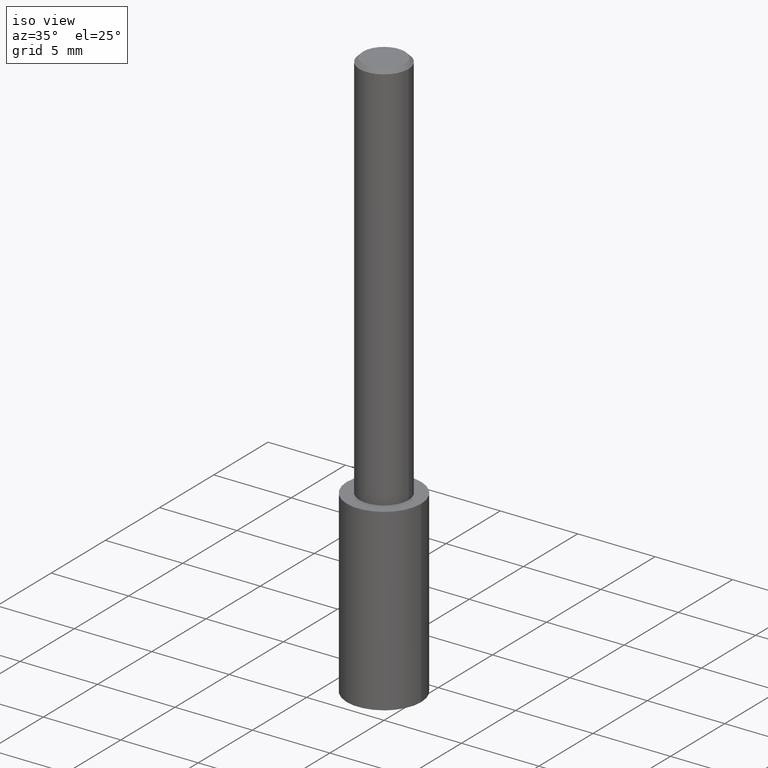
[diagram: clean part render]
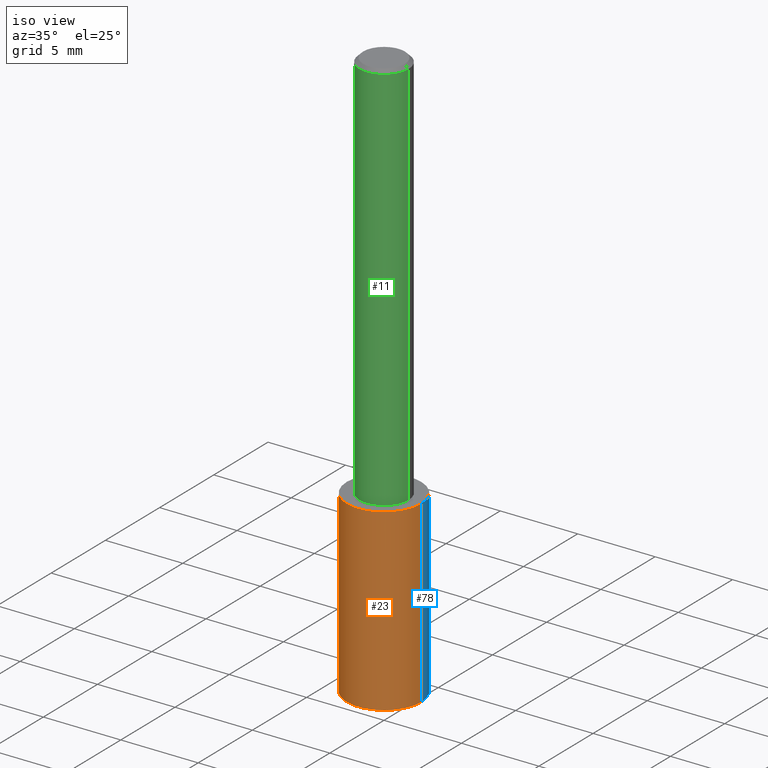
[diagram: same view with three faces highlighted in distinct colors, each labeled with its STEP entity id]
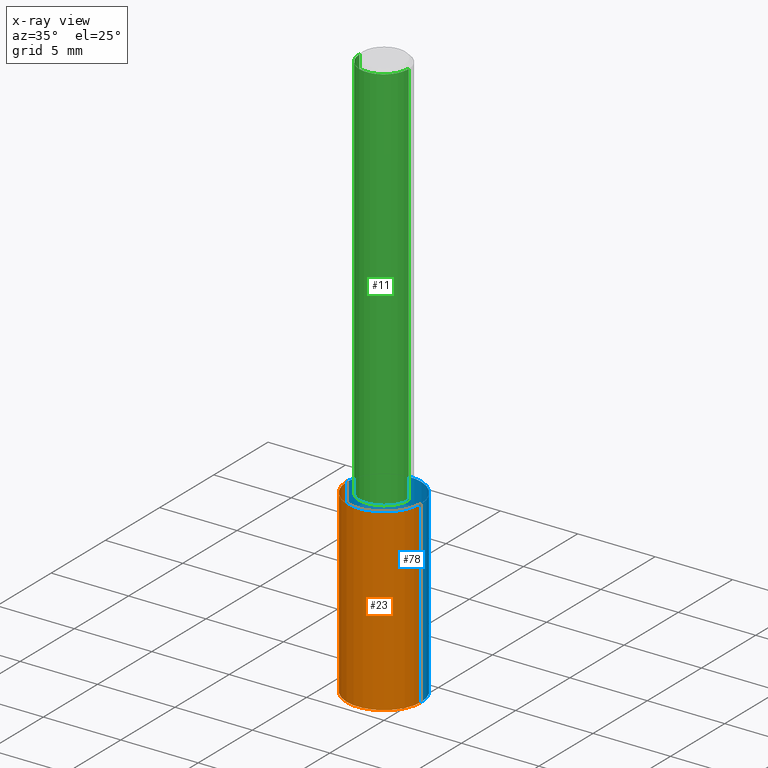
[diagram: x-ray of the same camera — body ghosted, the three highlighted faces saturated]
A machine part, iso view with three faces highlighted in distinct colors.
The next image is the same camera in x-ray (body ghosted, the three faces saturated) — at least one of them is partly hidden behind the body in this view.
Their STEP definitions:

[orange] entity #23 — the highlighted cylindrical surface (partial cylindrical patch) has radius 2.4003 mm, axis along (-0, 0, 1).
#1 = CARTESIAN_POINT ( 'NONE',  ( -0.09450000000000001454, -4.411903248986985027E-15, -1.455933926304352921 ) ) ;
#4 = EDGE_CURVE ( 'NONE', #139, #196, #252, .T. ) ;
#22 = CARTESIAN_POINT ( 'NONE',  ( 2.445468806185136877E-29, -3.491481338843145977E-15, -1.000000000000000222 ) ) ;
#23 = ADVANCED_FACE ( 'NONE', ( #88 ), #172, .T. ) ;
#29 = VERTEX_POINT ( 'NONE', #61 ) ;
#36 = CARTESIAN_POINT ( 'NONE',  ( 2.445468806185137438E-29, -3.491481338843146371E-15, -1.000000000000000222 ) ) ;
#49 = ORIENTED_EDGE ( 'NONE', *, *, #147, .F. ) ;
#59 = DIRECTION ( 'NONE',  ( -2.445468806185136877E-29, 3.491481338843145188E-15, 1.000000000000000000 ) ) ;
#61 = CARTESIAN_POINT ( 'NONE',  ( -0.09449999999999998679, -3.615960851268418458E-15, -1.000000000000000222 ) ) ;
#70 = CARTESIAN_POINT ( 'NONE',  ( 0.09449999999999998679, -4.151371311884497992E-15, -1.000000000000000222 ) ) ;
#76 = VECTOR ( 'NONE', #59, 39.37007874015748143 ) ;
#81 = VERTEX_POINT ( 'NONE', #1 ) ;
#88 = FACE_OUTER_BOUND ( 'NONE', #309, .T. ) ;
#104 = AXIS2_PLACEMENT_3D ( 'NONE', #22, #126, #233 ) ;
#119 = ORIENTED_EDGE ( 'NONE', *, *, #253, .F. ) ;
#120 = ORIENTED_EDGE ( 'NONE', *, *, #215, .T. ) ;
#121 = CARTESIAN_POINT ( 'NONE',  ( -0.09449999999999998679, -2.820018453549851888E-15, -1.000000000000000222 ) ) ;
#122 = VECTOR ( 'NONE', #124, 39.37007874015748143 ) ;
#124 = DIRECTION ( 'NONE',  ( -2.445468806185136877E-29, 3.491481338843145188E-15, 1.000000000000000000 ) ) ;
#126 = DIRECTION ( 'NONE',  ( -2.445468806185136597E-29, 3.491481338843145583E-15, 1.000000000000000000 ) ) ;
#138 = CARTESIAN_POINT ( 'NONE',  ( 0.09449999999999998679, -4.151371311884498781E-15, -1.000000000000000222 ) ) ;
#139 = VERTEX_POINT ( 'NONE', #292 ) ;
#141 = DIRECTION ( 'NONE',  ( 1.000000000000000000, -6.982962677686266711E-15, 0.000000000000000000 ) ) ;
#147 = EDGE_CURVE ( 'NONE', #81, #29, #319, .T. ) ;
#167 = AXIS2_PLACEMENT_3D ( 'NONE', #286, #179, #318 ) ;
#172 = CYLINDRICAL_SURFACE ( 'NONE', #269, 0.09449999999999998679 ) ;
#179 = DIRECTION ( 'NONE',  ( -2.445468806185136597E-29, 3.491481338843145583E-15, 1.000000000000000000 ) ) ;
#196 = VERTEX_POINT ( 'NONE', #70 ) ;
#198 = DIRECTION ( 'NONE',  ( -2.445468806185136597E-29, 3.491481338843145583E-15, 1.000000000000000000 ) ) ;
#201 = CIRCLE ( 'NONE', #104, 0.09449999999999998679 ) ;
#215 = EDGE_CURVE ( 'NONE', #81, #139, #322, .T. ) ;
#233 = DIRECTION ( 'NONE',  ( 1.000000000000000000, -6.982962677686266711E-15, 0.000000000000000000 ) ) ;
#252 = LINE ( 'NONE', #138, #76 ) ;
#253 = EDGE_CURVE ( 'NONE', #29, #196, #201, .T. ) ;
#269 = AXIS2_PLACEMENT_3D ( 'NONE', #36, #198, #141 ) ;
#286 = CARTESIAN_POINT ( 'NONE',  ( 3.560441000643944495E-29, -5.083366134280279905E-15, -1.455933926304352921 ) ) ;
#292 = CARTESIAN_POINT ( 'NONE',  ( 0.09450000000000001454, -5.743256107321631920E-15, -1.455933926304352921 ) ) ;
#309 = EDGE_LOOP ( 'NONE', ( #49, #120, #330, #119 ) ) ;
#318 = DIRECTION ( 'NONE',  ( 1.000000000000000000, -6.982962677686266711E-15, 0.000000000000000000 ) ) ;
#319 = LINE ( 'NONE', #121, #122 ) ;
#322 = CIRCLE ( 'NONE', #167, 0.09449999999999998679 ) ;
#330 = ORIENTED_EDGE ( 'NONE', *, *, #4, .T. ) ;

[blue] entity #78 — the highlighted cylindrical surface (partial cylindrical patch) has radius 2.4003 mm, axis along (-0, 0, 1).
#1 = CARTESIAN_POINT ( 'NONE',  ( -0.09450000000000001454, -4.411903248986985027E-15, -1.455933926304352921 ) ) ;
#2 = DIRECTION ( 'NONE',  ( -2.445468806185136597E-29, 3.491481338843145583E-15, 1.000000000000000000 ) ) ;
#4 = EDGE_CURVE ( 'NONE', #139, #196, #252, .T. ) ;
#29 = VERTEX_POINT ( 'NONE', #61 ) ;
#59 = DIRECTION ( 'NONE',  ( -2.445468806185136877E-29, 3.491481338843145188E-15, 1.000000000000000000 ) ) ;
#61 = CARTESIAN_POINT ( 'NONE',  ( -0.09449999999999998679, -3.615960851268418458E-15, -1.000000000000000222 ) ) ;
#67 = CYLINDRICAL_SURFACE ( 'NONE', #68, 0.09449999999999998679 ) ;
#68 = AXIS2_PLACEMENT_3D ( 'NONE', #94, #143, #264 ) ;
#70 = CARTESIAN_POINT ( 'NONE',  ( 0.09449999999999998679, -4.151371311884497992E-15, -1.000000000000000222 ) ) ;
#76 = VECTOR ( 'NONE', #59, 39.37007874015748143 ) ;
#78 = ADVANCED_FACE ( 'NONE', ( #208 ), #67, .T. ) ;
#79 = ORIENTED_EDGE ( 'NONE', *, *, #4, .F. ) ;
#81 = VERTEX_POINT ( 'NONE', #1 ) ;
#83 = EDGE_LOOP ( 'NONE', ( #164, #175, #112, #79 ) ) ;
#94 = CARTESIAN_POINT ( 'NONE',  ( 2.445468806185137438E-29, -3.491481338843146371E-15, -1.000000000000000222 ) ) ;
#96 = CARTESIAN_POINT ( 'NONE',  ( 2.445468806185136877E-29, -3.491481338843145977E-15, -1.000000000000000222 ) ) ;
#112 = ORIENTED_EDGE ( 'NONE', *, *, #229, .F. ) ;
#121 = CARTESIAN_POINT ( 'NONE',  ( -0.09449999999999998679, -2.820018453549851888E-15, -1.000000000000000222 ) ) ;
#122 = VECTOR ( 'NONE', #124, 39.37007874015748143 ) ;
#123 = CARTESIAN_POINT ( 'NONE',  ( 3.560441000643944495E-29, -5.083366134280279905E-15, -1.455933926304352921 ) ) ;
#124 = DIRECTION ( 'NONE',  ( -2.445468806185136877E-29, 3.491481338843145188E-15, 1.000000000000000000 ) ) ;
#125 = EDGE_CURVE ( 'NONE', #139, #81, #333, .T. ) ;
#138 = CARTESIAN_POINT ( 'NONE',  ( 0.09449999999999998679, -4.151371311884498781E-15, -1.000000000000000222 ) ) ;
#139 = VERTEX_POINT ( 'NONE', #292 ) ;
#143 = DIRECTION ( 'NONE',  ( -2.445468806185136597E-29, 3.491481338843145583E-15, 1.000000000000000000 ) ) ;
#147 = EDGE_CURVE ( 'NONE', #81, #29, #319, .T. ) ;
#164 = ORIENTED_EDGE ( 'NONE', *, *, #125, .T. ) ;
#175 = ORIENTED_EDGE ( 'NONE', *, *, #147, .T. ) ;
#180 = CIRCLE ( 'NONE', #259, 0.09449999999999998679 ) ;
#196 = VERTEX_POINT ( 'NONE', #70 ) ;
#204 = DIRECTION ( 'NONE',  ( 1.000000000000000000, -6.982962677686266711E-15, 0.000000000000000000 ) ) ;
#208 = FACE_OUTER_BOUND ( 'NONE', #83, .T. ) ;
#229 = EDGE_CURVE ( 'NONE', #196, #29, #180, .T. ) ;
#252 = LINE ( 'NONE', #138, #76 ) ;
#259 = AXIS2_PLACEMENT_3D ( 'NONE', #96, #2, #204 ) ;
#262 = DIRECTION ( 'NONE',  ( 1.000000000000000000, -6.982962677686266711E-15, 0.000000000000000000 ) ) ;
#264 = DIRECTION ( 'NONE',  ( 1.000000000000000000, -6.982962677686266711E-15, 0.000000000000000000 ) ) ;
#277 = AXIS2_PLACEMENT_3D ( 'NONE', #123, #316, #262 ) ;
#292 = CARTESIAN_POINT ( 'NONE',  ( 0.09450000000000001454, -5.743256107321631920E-15, -1.455933926304352921 ) ) ;
#316 = DIRECTION ( 'NONE',  ( -2.445468806185136597E-29, 3.491481338843145583E-15, 1.000000000000000000 ) ) ;
#319 = LINE ( 'NONE', #121, #122 ) ;
#333 = CIRCLE ( 'NONE', #277, 0.09449999999999998679 ) ;

[green] entity #11 — the highlighted cylindrical surface (edge-blend (fillet) strip) has radius 1.5875 mm, axis along (-0, 0, 1).
#5 = VECTOR ( 'NONE', #302, 39.37007874015748143 ) ;
#10 = AXIS2_PLACEMENT_3D ( 'NONE', #43, #44, #288 ) ;
#11 = ADVANCED_FACE ( 'NONE', ( #282 ), #14, .T. ) ;
#12 = CARTESIAN_POINT ( 'NONE',  ( 0.000000000000000000, 0.000000000000000000, 0.000000000000000000 ) ) ;
#14 = CYLINDRICAL_SURFACE ( 'NONE', #228, 0.06250000000000006939 ) ;
#18 = CIRCLE ( 'NONE', #10, 0.06250000000000000000 ) ;
#20 = CARTESIAN_POINT ( 'NONE',  ( 0.06250000000000000000, -4.691678049070464390E-16, -0.009375000000000069042 ) ) ;
#34 = ORIENTED_EDGE ( 'NONE', *, *, #153, .F. ) ;
#43 = CARTESIAN_POINT ( 'NONE',  ( 2.292627005798582375E-31, -3.273263755165473266E-17, -0.009375000000000069042 ) ) ;
#44 = DIRECTION ( 'NONE',  ( -2.445468806185136597E-29, 3.491481338843145583E-15, 1.000000000000000000 ) ) ;
#50 = VERTEX_POINT ( 'NONE', #313 ) ;
#82 = CARTESIAN_POINT ( 'NONE',  ( -0.06250000000000000000, -1.318017778347336672E-15, -0.009375000000000069042 ) ) ;
#102 = CARTESIAN_POINT ( 'NONE',  ( -0.06250000000000006939, 4.440892098500631092E-16, -3.074334431409319267E-30 ) ) ;
#114 = DIRECTION ( 'NONE',  ( -2.445468806185136597E-29, 3.491481338843145583E-15, 1.000000000000000000 ) ) ;
#128 = LINE ( 'NONE', #237, #5 ) ;
#135 = LINE ( 'NONE', #102, #223 ) ;
#146 = CIRCLE ( 'NONE', #293, 0.06250000000000012490 ) ;
#153 = EDGE_CURVE ( 'NONE', #305, #161, #18, .T. ) ;
#161 = VERTEX_POINT ( 'NONE', #20 ) ;
#171 = ORIENTED_EDGE ( 'NONE', *, *, #273, .F. ) ;
#182 = CARTESIAN_POINT ( 'NONE',  ( 0.06250000000000012490, -3.927916506198539224E-15, -1.000000000000000222 ) ) ;
#187 = DIRECTION ( 'NONE',  ( -2.445468806185136877E-29, 3.491481338843145188E-15, 1.000000000000000000 ) ) ;
#188 = ORIENTED_EDGE ( 'NONE', *, *, #321, .T. ) ;
#191 = VERTEX_POINT ( 'NONE', #182 ) ;
#223 = VECTOR ( 'NONE', #187, 39.37007874015748143 ) ;
#224 = DIRECTION ( 'NONE',  ( 1.000000000000000000, -6.982962677686266711E-15, 4.876176775795935793E-29 ) ) ;
#228 = AXIS2_PLACEMENT_3D ( 'NONE', #12, #114, #224 ) ;
#237 = CARTESIAN_POINT ( 'NONE',  ( 0.06250000000000006939, -4.364351673553921624E-16, 3.047610484872463374E-30 ) ) ;
#273 = EDGE_CURVE ( 'NONE', #50, #305, #135, .T. ) ;
#282 = FACE_OUTER_BOUND ( 'NONE', #332, .T. ) ;
#285 = ORIENTED_EDGE ( 'NONE', *, *, #294, .T. ) ;
#288 = DIRECTION ( 'NONE',  ( 1.000000000000000000, -6.982962677686266711E-15, 0.000000000000000000 ) ) ;
#293 = AXIS2_PLACEMENT_3D ( 'NONE', #304, #300, #324 ) ;
#294 = EDGE_CURVE ( 'NONE', #50, #191, #146, .T. ) ;
#300 = DIRECTION ( 'NONE',  ( -2.445468806185136597E-29, 3.491481338843145583E-15, 1.000000000000000000 ) ) ;
#302 = DIRECTION ( 'NONE',  ( -2.445468806185136877E-29, 3.491481338843145188E-15, 1.000000000000000000 ) ) ;
#304 = CARTESIAN_POINT ( 'NONE',  ( 2.445468806185137438E-29, -3.491481338843146371E-15, -1.000000000000000222 ) ) ;
#305 = VERTEX_POINT ( 'NONE', #82 ) ;
#313 = CARTESIAN_POINT ( 'NONE',  ( -0.06250000000000012490, -1.318017778347335489E-15, -1.000000000000000222 ) ) ;
#321 = EDGE_CURVE ( 'NONE', #191, #161, #128, .T. ) ;
#324 = DIRECTION ( 'NONE',  ( 1.000000000000000000, -6.982962677686264344E-15, 0.000000000000000000 ) ) ;
#332 = EDGE_LOOP ( 'NONE', ( #171, #285, #188, #34 ) ) ;